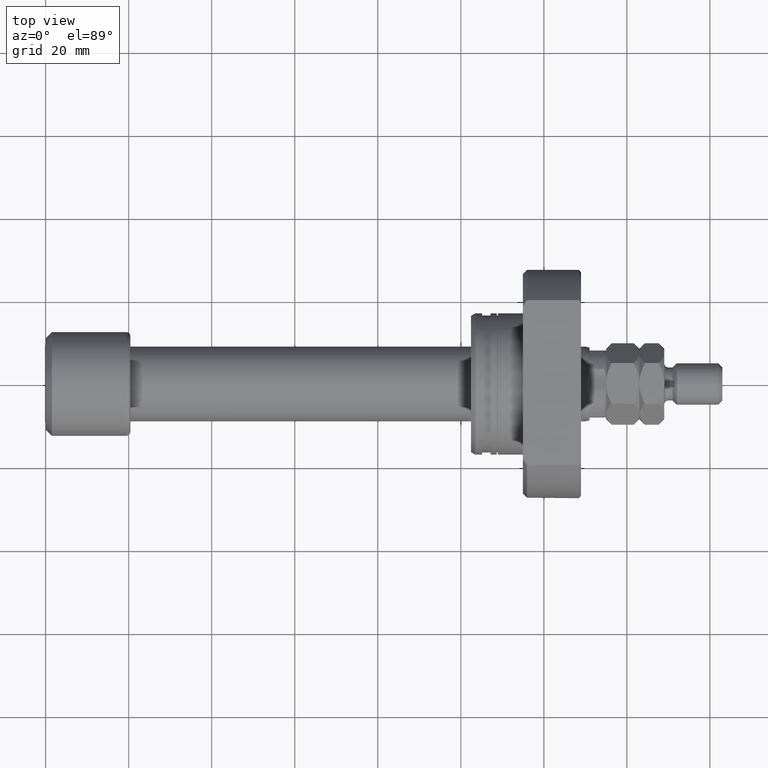
[diagram: clean part render]
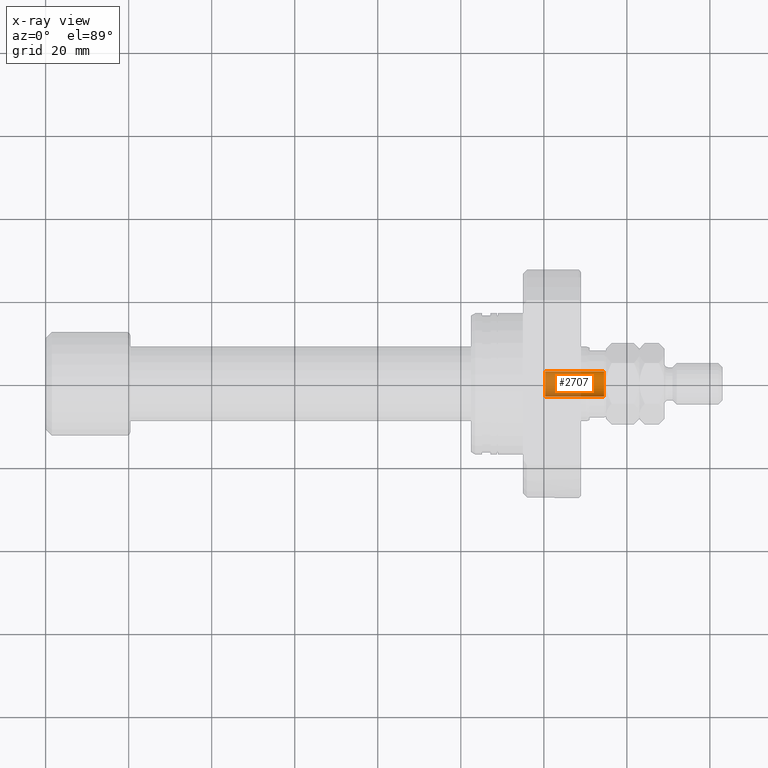
[diagram: x-ray — body ghosted, one internal face saturated and labeled with its STEP entity id]
A machine part, top view, then the same camera in x-ray: the body is ghosted and one INTERNAL B-rep face — a face not visible from any outside direction — is saturated and labeled: STEP entity #2707.
In plain terms, the highlighted cylindrical surface (edge-blend (fillet) strip) has radius 3 mm, axis along (1, -0, 0).
Its self-contained STEP definition (entity closure, byte-faithful):
#60 = DIRECTION ( 'NONE',  ( 1.000000000000000000, -1.657264799492230625E-14, -0.000000000000000000 ) ) ;
#188 = AXIS2_PLACEMENT_3D ( 'NONE', #2658, #60, #1557 ) ;
#303 = DIRECTION ( 'NONE',  ( 1.850371707708190232E-14, 1.000000000000000000, 0.000000000000000000 ) ) ;
#313 = DIRECTION ( 'NONE',  ( 1.000000000000000000, -1.657264799492230625E-14, -0.000000000000000000 ) ) ;
#324 = CARTESIAN_POINT ( 'NONE',  ( 120.2999999999999829, -1.993689553789153133E-12, 0.000000000000000000 ) ) ;
#401 = CARTESIAN_POINT ( 'NONE',  ( 120.2999999999999261, -3.000000000002648548, 3.673940397442862041E-16 ) ) ;
#576 = CIRCLE ( 'NONE', #2442, 3.000000000000655032 ) ;
#609 = VERTEX_POINT ( 'NONE', #401 ) ;
#666 = ORIENTED_EDGE ( 'NONE', *, *, #3933, .F. ) ;
#1050 = DIRECTION ( 'NONE',  ( 1.000000000000000000, -1.657264799492230625E-14, -0.000000000000000000 ) ) ;
#1381 = EDGE_CURVE ( 'NONE', #609, #3099, #2896, .T. ) ;
#1546 = ORIENTED_EDGE ( 'NONE', *, *, #1890, .F. ) ;
#1557 = DIRECTION ( 'NONE',  ( 1.850371707708190232E-14, 1.000000000000000000, 0.000000000000000000 ) ) ;
#1567 = VERTEX_POINT ( 'NONE', #2241 ) ;
#1579 = DIRECTION ( 'NONE',  ( -1.850371707708190232E-14, -1.000000000000000000, 0.000000000000000000 ) ) ;
#1890 = EDGE_CURVE ( 'NONE', #609, #2262, #576, .T. ) ;
#1993 = DIRECTION ( 'NONE',  ( 1.000000000000000000, -1.657264799492235042E-14, 0.000000000000000000 ) ) ;
#2160 = VECTOR ( 'NONE', #313, 1000.000000000000000 ) ;
#2241 = CARTESIAN_POINT ( 'NONE',  ( 134.5000000000001137, 2.999999999998425704, 0.000000000000000000 ) ) ;
#2262 = VERTEX_POINT ( 'NONE', #3251 ) ;
#2310 = CYLINDRICAL_SURFACE ( 'NONE', #188, 3.000000000000655032 ) ;
#2442 = AXIS2_PLACEMENT_3D ( 'NONE', #324, #3281, #303 ) ;
#2497 = ORIENTED_EDGE ( 'NONE', *, *, #1381, .T. ) ;
#2513 = ORIENTED_EDGE ( 'NONE', *, *, #2783, .T. ) ;
#2658 = CARTESIAN_POINT ( 'NONE',  ( 120.2999999999999829, -1.993689553789153133E-12, 0.000000000000000000 ) ) ;
#2707 = ADVANCED_FACE ( 'NONE', ( #4448 ), #2310, .F. ) ;
#2783 = EDGE_CURVE ( 'NONE', #3099, #1567, #4061, .T. ) ;
#2784 = EDGE_LOOP ( 'NONE', ( #1546, #2497, #2513, #666 ) ) ;
#2896 = LINE ( 'NONE', #4360, #3883 ) ;
#3070 = CARTESIAN_POINT ( 'NONE',  ( 134.5000000000000568, -2.229021155317051935E-12, 0.000000000000000000 ) ) ;
#3099 = VERTEX_POINT ( 'NONE', #3700 ) ;
#3251 = CARTESIAN_POINT ( 'NONE',  ( 120.3000000000000256, 2.999999999998661071, 0.000000000000000000 ) ) ;
#3281 = DIRECTION ( 'NONE',  ( 1.000000000000000000, -1.657264799492230625E-14, 0.000000000000000000 ) ) ;
#3700 = CARTESIAN_POINT ( 'NONE',  ( 134.5000000000000000, -3.000000000002883915, 3.673940397443006501E-16 ) ) ;
#3883 = VECTOR ( 'NONE', #1050, 1000.000000000000000 ) ;
#3933 = EDGE_CURVE ( 'NONE', #2262, #1567, #4688, .T. ) ;
#4061 = CIRCLE ( 'NONE', #4677, 3.000000000000655032 ) ;
#4360 = CARTESIAN_POINT ( 'NONE',  ( 120.2999999999999261, -3.000000000002648548, 3.673940397442862041E-16 ) ) ;
#4448 = FACE_OUTER_BOUND ( 'NONE', #2784, .T. ) ;
#4663 = CARTESIAN_POINT ( 'NONE',  ( 120.3000000000000256, 2.999999999998661071, 0.000000000000000000 ) ) ;
#4677 = AXIS2_PLACEMENT_3D ( 'NONE', #3070, #1993, #1579 ) ;
#4688 = LINE ( 'NONE', #4663, #2160 ) ;